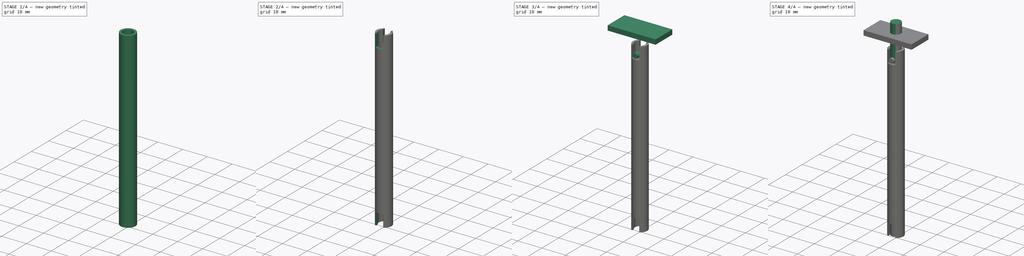
[diagram: build sequence overview — one tinted view per stage of 4, left to right]
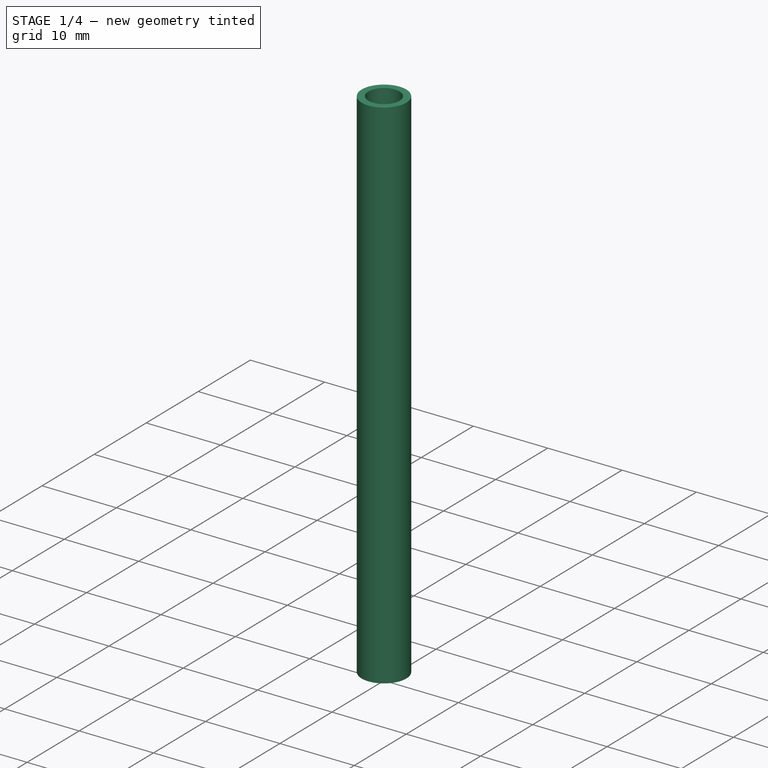
[diagram: stage 1 of 4 — iso view after this stage's code; geometry added in this stage tinted green]
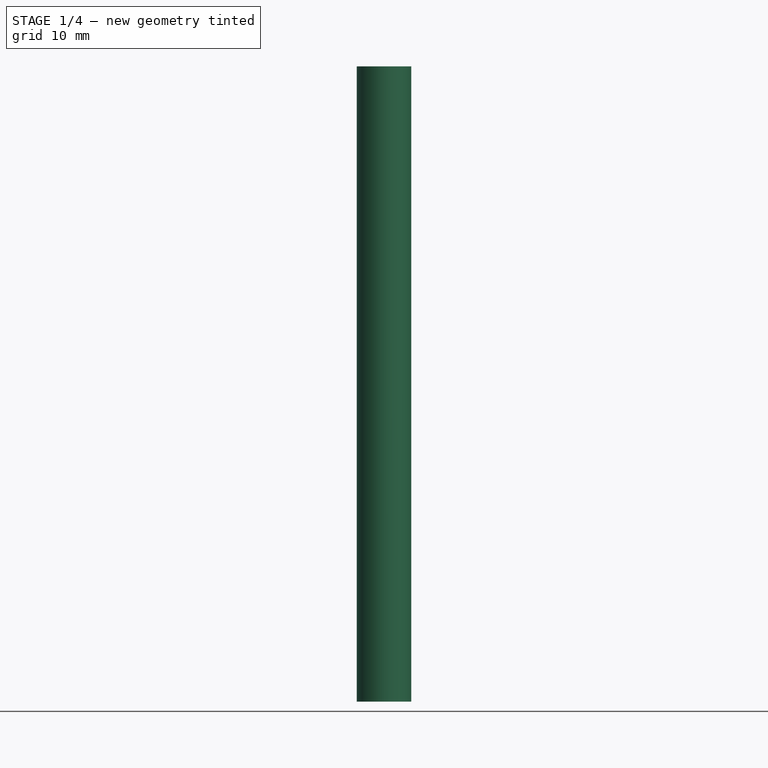
[diagram: stage 1 of 4 — front view after this stage's code; geometry added in this stage tinted green]
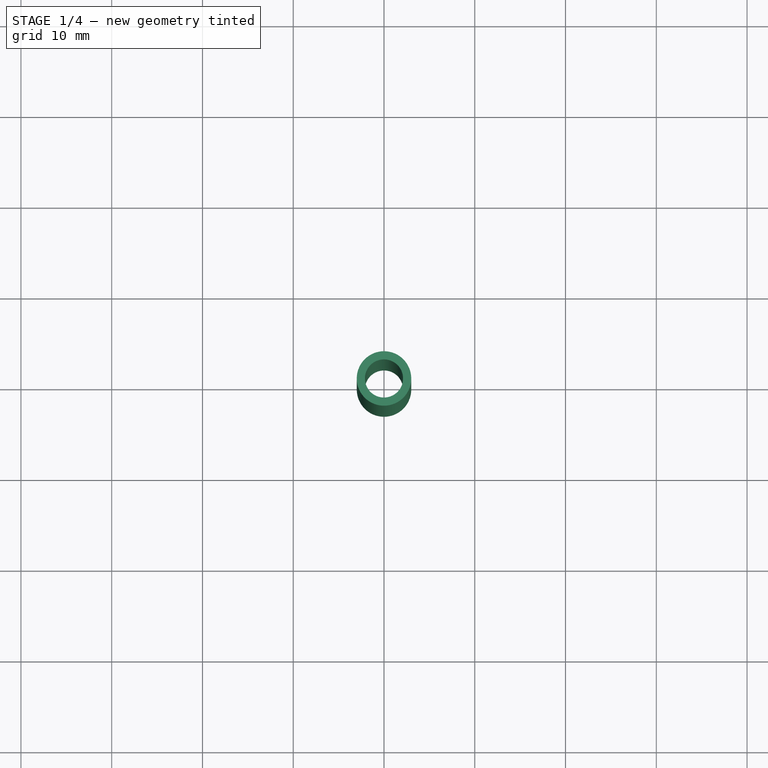
[diagram: stage 1 of 4 — top view after this stage's code; geometry added in this stage tinted green]
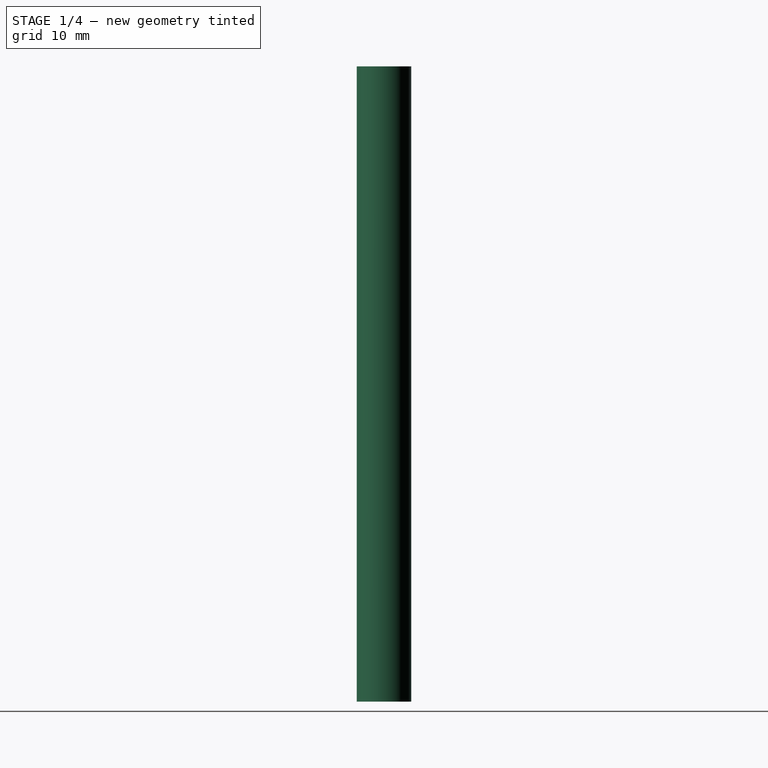
[diagram: stage 1 of 4 — right view after this stage's code; geometry added in this stage tinted green]
FCSTD DOCUMENT  (FreeCAD 0.16R6706 (Git))
Label: Assemblage2
License: All rights reserved
LicenseURL: http://en.wikipedia.org/wiki/All_rights_reserved
objects: Sketcher::SketchObject×8, PartDesign::Pocket×4, Part::Cylinder×3, Part::Fuse×2, Part::Box×1, Part::Helix×1
note: 23 computed .brp shape members not serialized (recipe doc carries the construction recipe); baked Part::Feature solids carry a one-line shape summary decoded from their .brp

FEATURE [Part::Cylinder] Cylinder  label="Cylindre"
  Angle = 360
  Height = 70
  Radius = 3
FEATURE [Sketcher::SketchObject] Sketch
  Placement = pos=(0,0,70) rot=(0,0,1;0rad)
  Support = -> Cylinder [Face2]
  sketch-geometry (1):
    g0: Circle CenterX=0 CenterY=0 CenterZ=0 NormalX=0 NormalY=0 NormalZ=1 Radius=2.1
  constraints (1):
    c: Radius(g0) = 2.1
FEATURE [PartDesign::Pocket] Pocket
  Length = 5
  Sketch = -> Sketch
  Type = 1
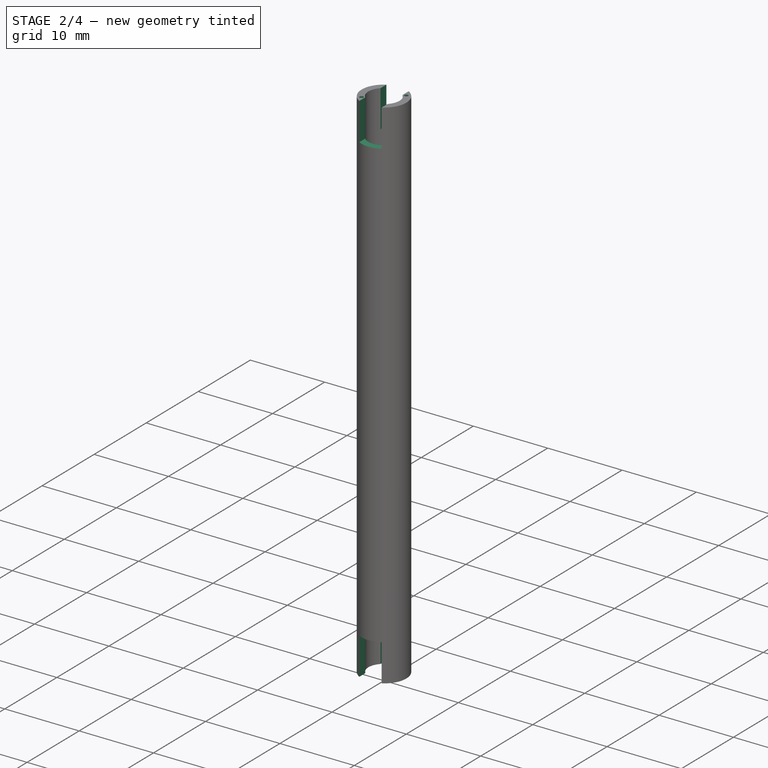
[diagram: stage 2 of 4 — iso view after this stage's code; geometry added in this stage tinted green]
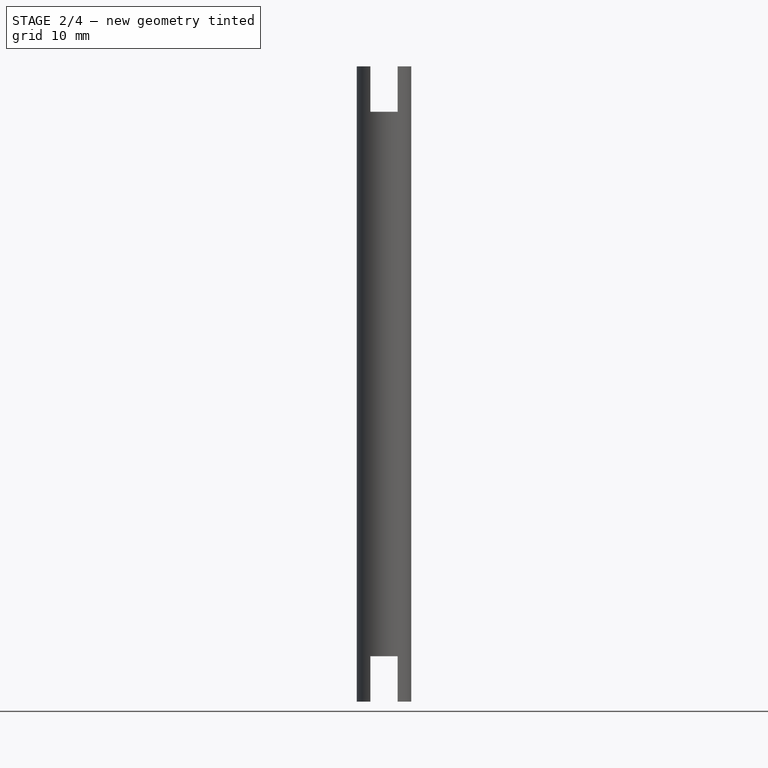
[diagram: stage 2 of 4 — front view after this stage's code; geometry added in this stage tinted green]
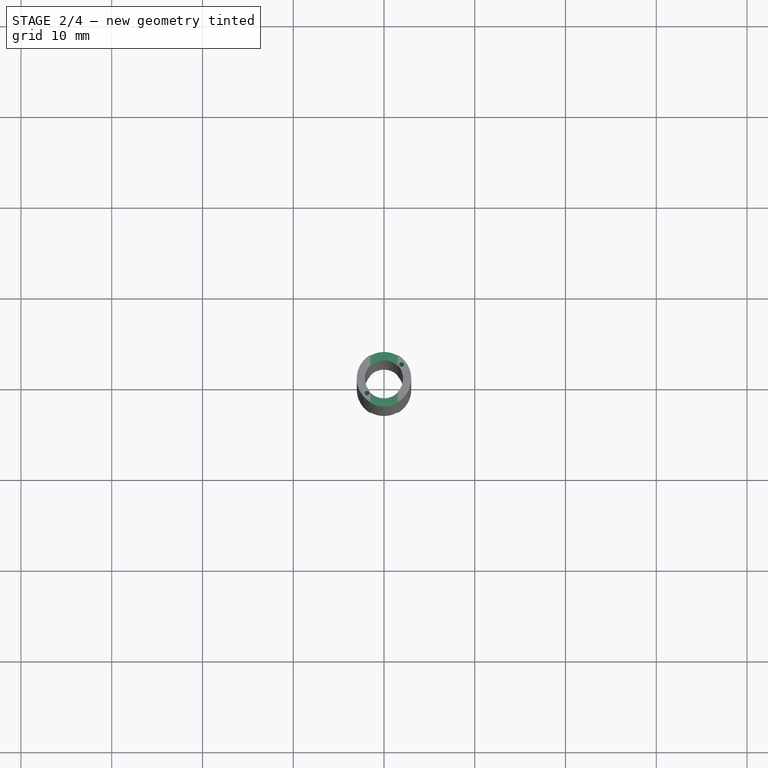
[diagram: stage 2 of 4 — top view after this stage's code; geometry added in this stage tinted green]
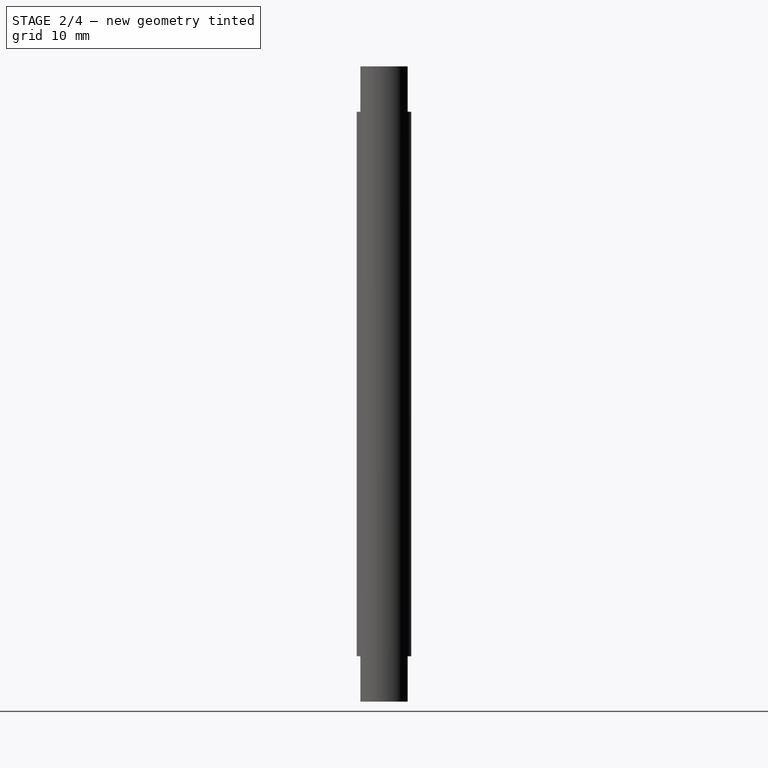
[diagram: stage 2 of 4 — right view after this stage's code; geometry added in this stage tinted green]
FEATURE [Sketcher::SketchObject] Sketch001
  Placement = pos=(0,0,0) rot=(1,0,0;3.14159rad)
  Support = -> Pocket [Face3]
  sketch-geometry (4):
    g0: LineSegment StartX=-1.5 StartY=3 StartZ=0 EndX=1.5 EndY=3 EndZ=0
    g1: LineSegment StartX=1.5 StartY=3 StartZ=0 EndX=1.5 EndY=-3 EndZ=0
    g2: LineSegment StartX=1.5 StartY=-3 StartZ=0 EndX=-1.5 EndY=-3 EndZ=0
    g3: LineSegment StartX=-1.5 StartY=-3 StartZ=0 EndX=-1.5 EndY=3 EndZ=0
  constraints (8):
    c: Coincident(g0,g1)
    c: Coincident(g1,g2)
    c: Coincident(g2,g3)
    c: Coincident(g3,g0)
    c: Horizontal(g0)
    c: Horizontal(g2)
    c: Vertical(g1)
    c: Vertical(g3)
FEATURE [PartDesign::Pocket] Pocket001
  Length = 5
  Sketch = -> Sketch001
  Type = 0
FEATURE [Sketcher::SketchObject] Sketch002
  Placement = pos=(0,0,70) rot=(0,0,1;0rad)
  Support = -> Pocket001 [Face10]
  sketch-geometry (6):
    g0: LineSegment StartX=0 StartY=3 StartZ=0 EndX=1.5 EndY=3 EndZ=0
    g1: LineSegment StartX=1.5 StartY=3 StartZ=0 EndX=1.5 EndY=-3 EndZ=0
    g2: LineSegment StartX=1.5 StartY=-3 StartZ=0 EndX=0 EndY=-3 EndZ=0
    g3: LineSegment StartX=-1.5 StartY=3 StartZ=0 EndX=0 EndY=3 EndZ=0
    g4: LineSegment StartX=0 StartY=-3 StartZ=0 EndX=-1.5 EndY=-3 EndZ=0
    g5: LineSegment StartX=-1.5 StartY=-3 StartZ=0 EndX=-1.5 EndY=3 EndZ=0
  constraints (11):
    c: Coincident(g0,g1)
    c: Coincident(g1,g2)
    c: Horizontal(g0)
    c: Horizontal(g2)
    c: Vertical(g1)
    c: PointOnObject(g0,g-2)
    c: Coincident(g4,g5)
    c: Coincident(g5,g3)
    c: Horizontal(g3)
    c: Horizontal(g4)
    c: Vertical(g5)
FEATURE [PartDesign::Pocket] Pocket002
  Length = 5
  Sketch = -> Sketch002
  Type = 0
FEATURE [Part::Helix] Helix  label="Hélice"
  Angle = 0
  Height = 6
  LocalCoord = 0
  Pitch = 1
  Placement = pos=(10,0,0) rot=(0,0,1;0rad)
  Radius = 2.5
  Style = 1
FEATURE [Sketcher::SketchObject] Sketch003
  Placement = pos=(0,0,0) rot=(1,0,0;3.14159rad)
  Support = -> Pocket002 [Face14]
FEATURE [Sketcher::SketchObject] Sketch004
  ExternalGeometry = -> [Pocket002]
  Placement = pos=(0,0,0) rot=(1,0,0;3.14159rad)
  Support = -> Pocket002 [Face14]
  sketch-geometry (2):
    g0: Circle CenterX=-1.88201 CenterY=1.6201 CenterZ=0 NormalX=0 NormalY=0 NormalZ=1 Radius=0.25
    g1: Circle CenterX=1.9157 CenterY=-1.53612 CenterZ=0 NormalX=0 NormalY=0 NormalZ=1 Radius=0.25
  constraints (2):
    c: Radius(g0) = 0.25
    c: Equal(g0,g1) = 0.25
FEATURE [PartDesign::Pocket] Pocket003
  Length = 5
  Sketch = -> Sketch004
  Type = 1
FEATURE [Sketcher::SketchObject] Sketch005
  Placement = pos=(0,0,0) rot=(1,0,0;3.14159rad)
  Support = -> Pocket003 [Face14]
FEATURE [Sketcher::SketchObject] Sketch006
  Placement = pos=(0,0,0) rot=(-1,0,0;4.71239rad)
  sketch-geometry (1):
    g0: Circle CenterX=12.5 CenterY=0 CenterZ=0 NormalX=0 NormalY=0 NormalZ=1 Radius=0
FEATURE [Sketcher::SketchObject] Sketch007
  Placement = pos=(0,0,0) rot=(-1,0,0;4.71239rad)
  sketch-geometry (1):
    g0: Circle CenterX=12.5 CenterY=0 CenterZ=0 NormalX=0 NormalY=0 NormalZ=1 Radius=0.161446
  constraints (1):
    c: DistanceX(g0) = 12.5
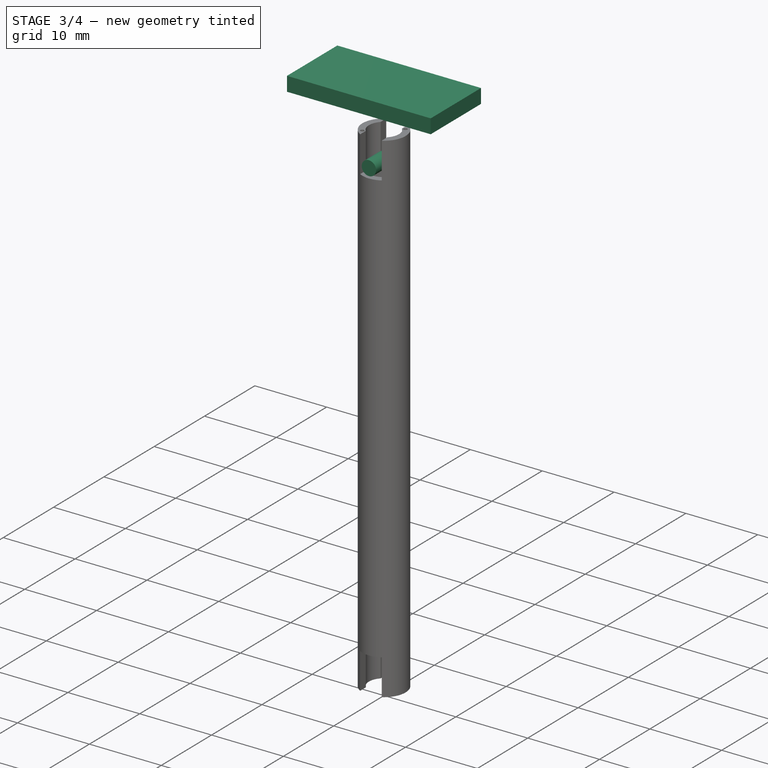
[diagram: stage 3 of 4 — iso view after this stage's code; geometry added in this stage tinted green]
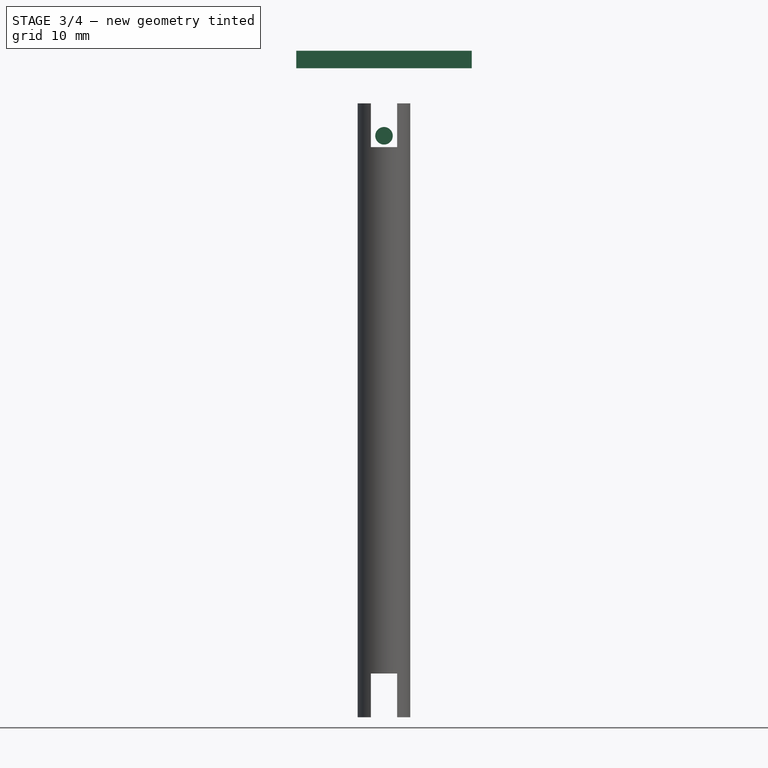
[diagram: stage 3 of 4 — front view after this stage's code; geometry added in this stage tinted green]
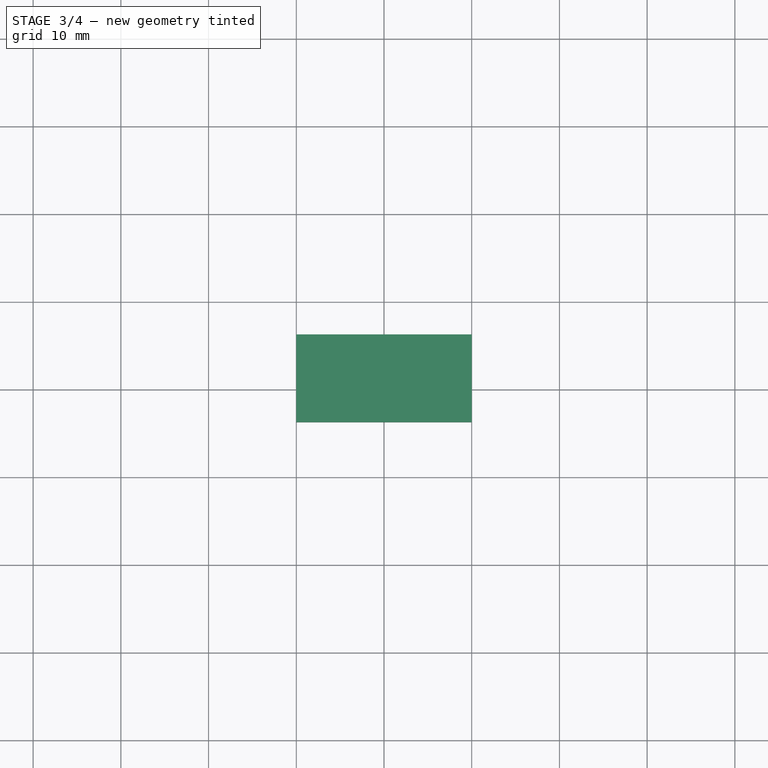
[diagram: stage 3 of 4 — top view after this stage's code; geometry added in this stage tinted green]
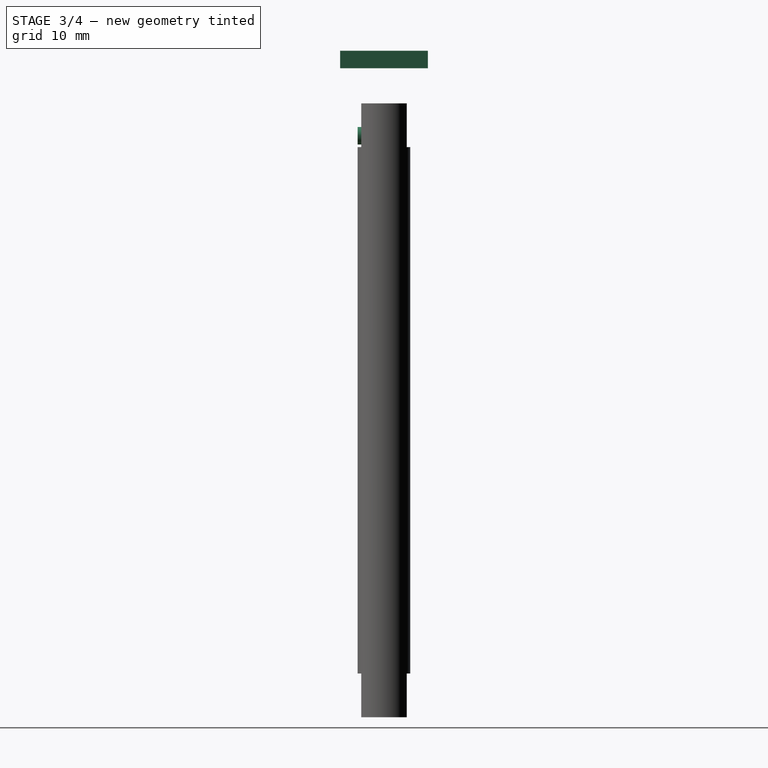
[diagram: stage 3 of 4 — right view after this stage's code; geometry added in this stage tinted green]
FEATURE [Part::Cylinder] Cylinder002  label="Cylindre002"
  Angle = 360
  Height = 3
  Placement = pos=(0,0,66.3) rot=(1,0,0;1.5708rad)
  Radius = 1
FEATURE [Part::Box] Box  label="Cube"
  Height = 2
  Length = 20
  Placement = pos=(-10,-5,74) rot=(0,0,1;0rad)
  Width = 10
FEATURE [Part::Fuse] Fusion001
  Base = -> Box
  Tool = -> Cylinder002
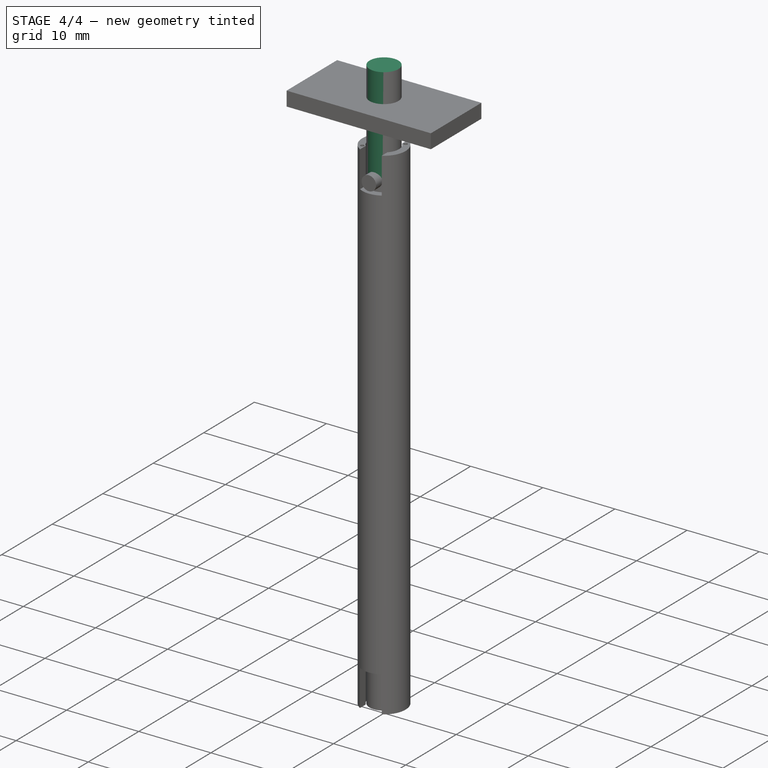
[diagram: stage 4 of 4 — iso view after this stage's code; geometry added in this stage tinted green]
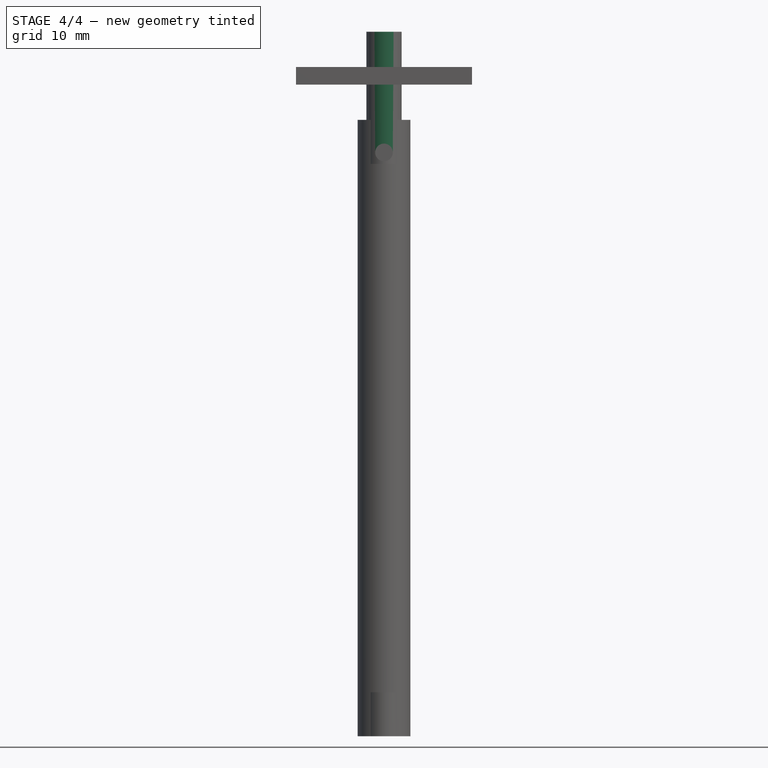
[diagram: stage 4 of 4 — front view after this stage's code; geometry added in this stage tinted green]
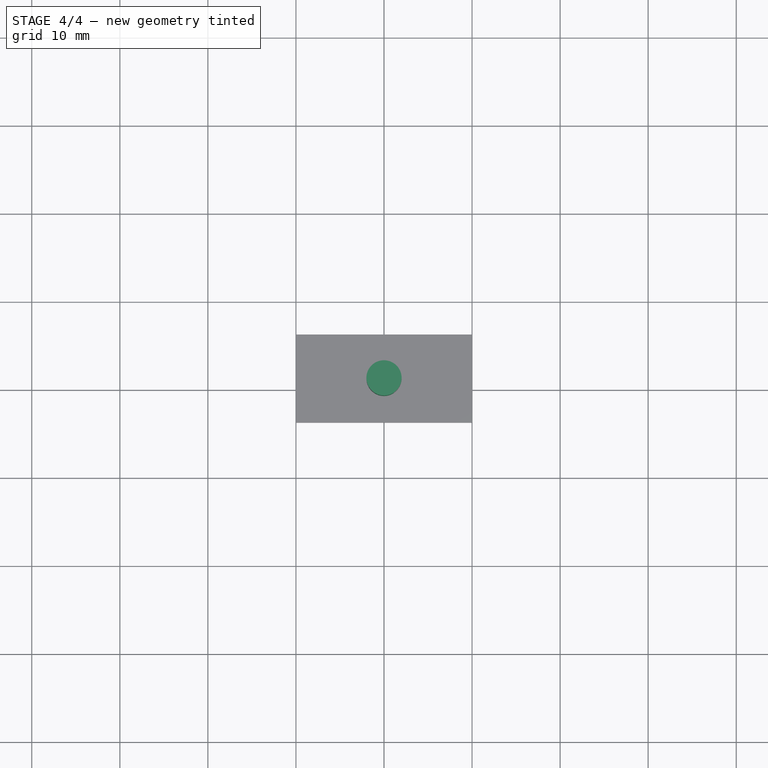
[diagram: stage 4 of 4 — top view after this stage's code; geometry added in this stage tinted green]
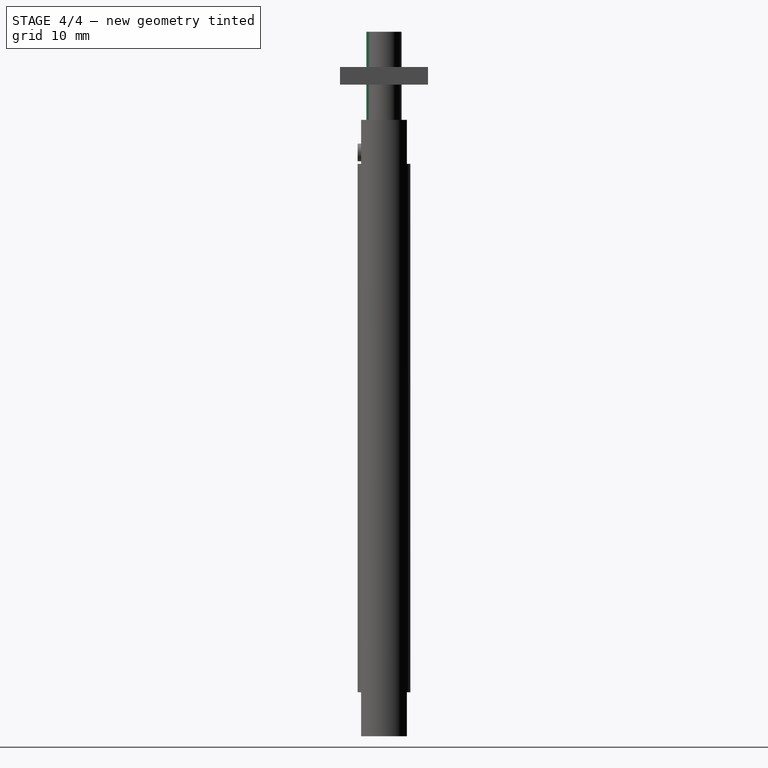
[diagram: stage 4 of 4 — right view after this stage's code; geometry added in this stage tinted green]
FEATURE [Part::Cylinder] Cylinder001  label="Cylindre001"
  Angle = 360
  Height = 80
  Radius = 2
FEATURE [Part::Fuse] Fusion
  Base = -> Cylinder001
  Tool = -> Cylinder002
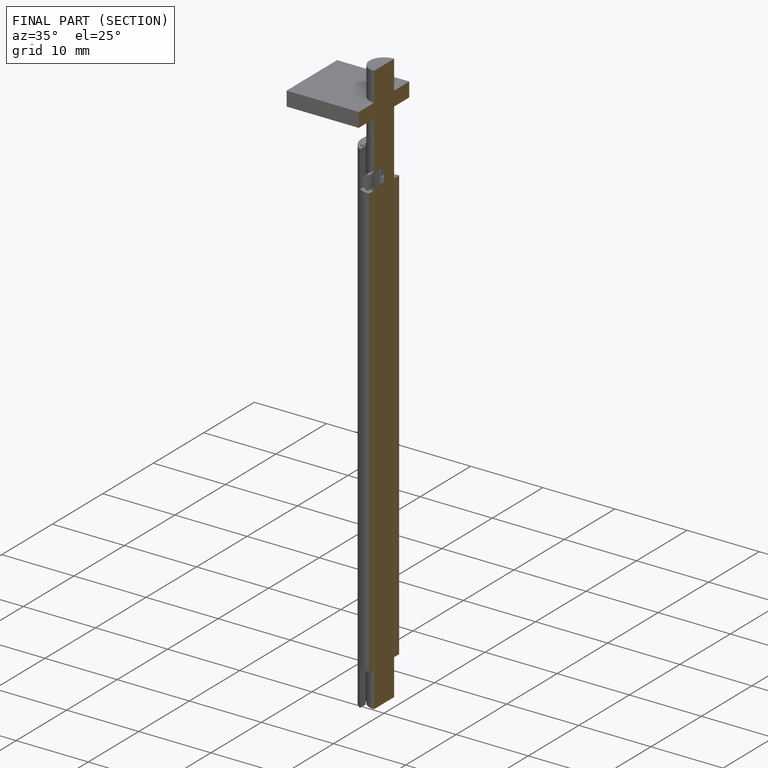
[diagram: finished part — half-section view (interior)]
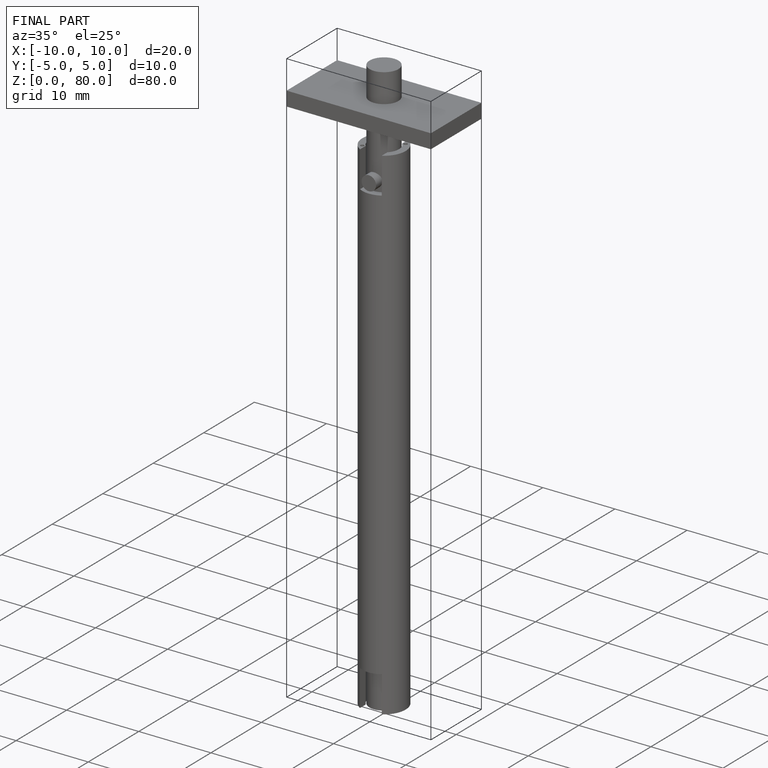
[diagram: finished part — iso view with bounding-box wireframe]
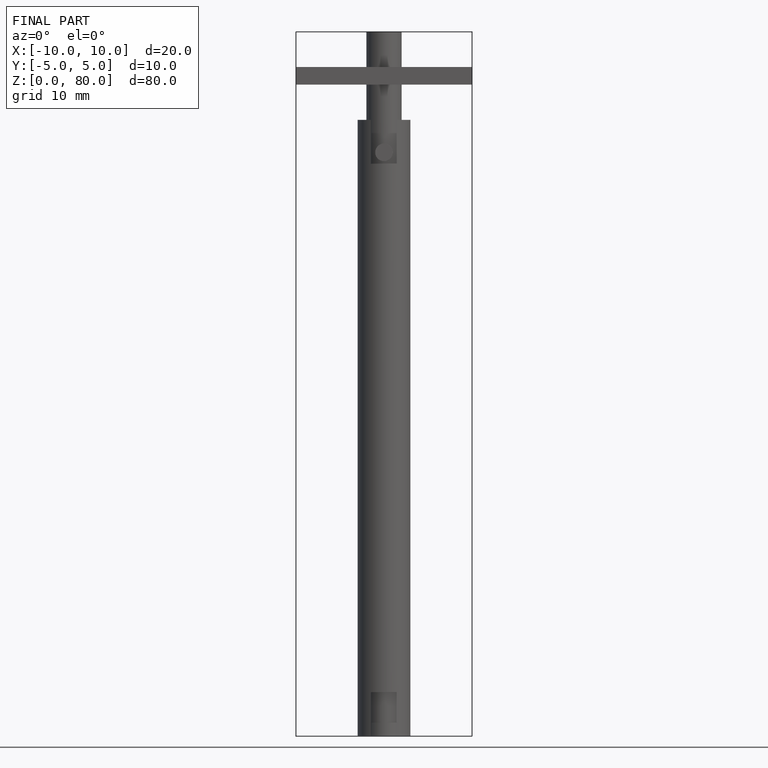
[diagram: finished part — front view with bounding-box wireframe]
